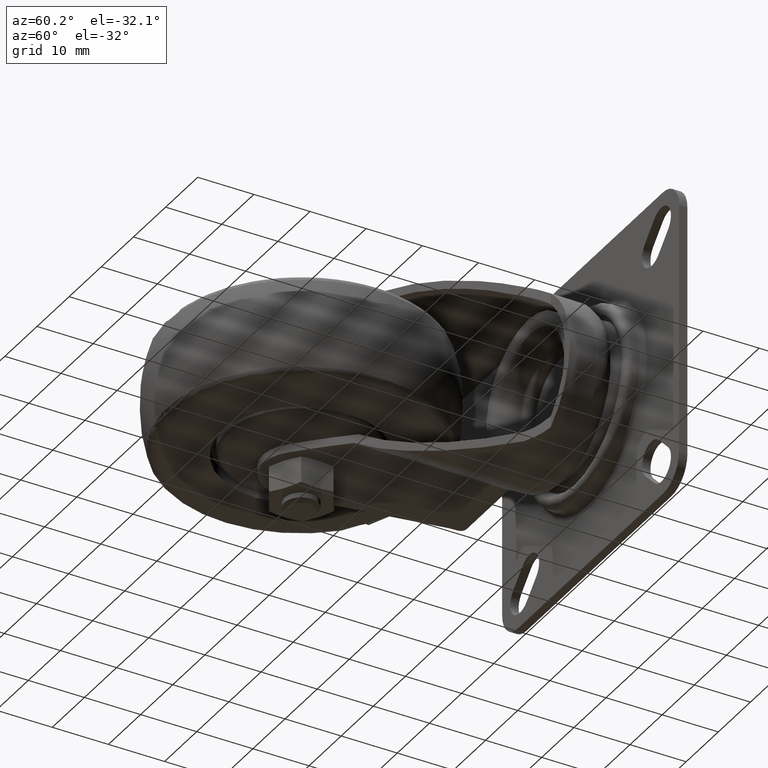
[diagram: clean part render]
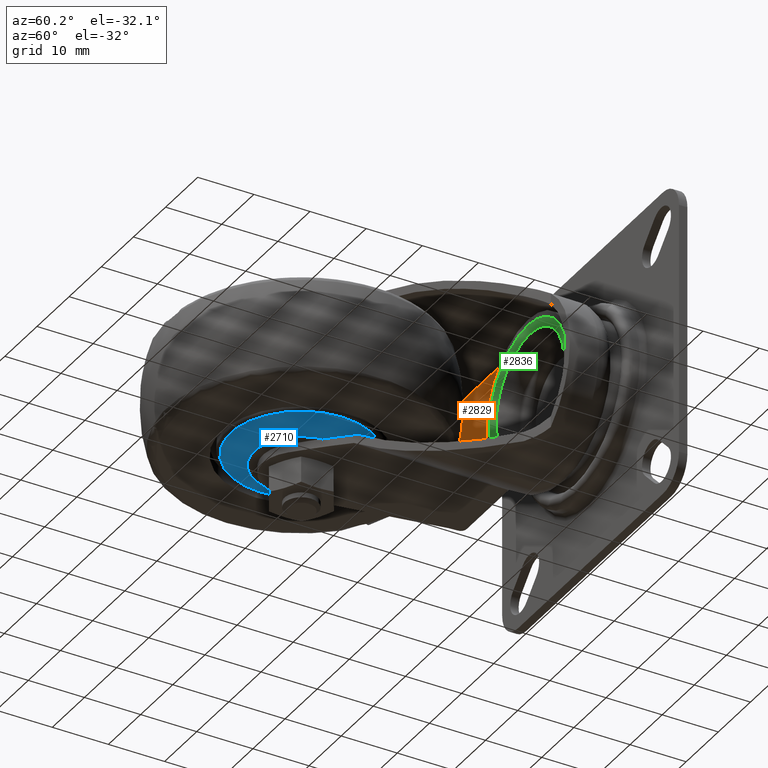
[diagram: same view with three faces highlighted in distinct colors, each labeled with its STEP entity id]
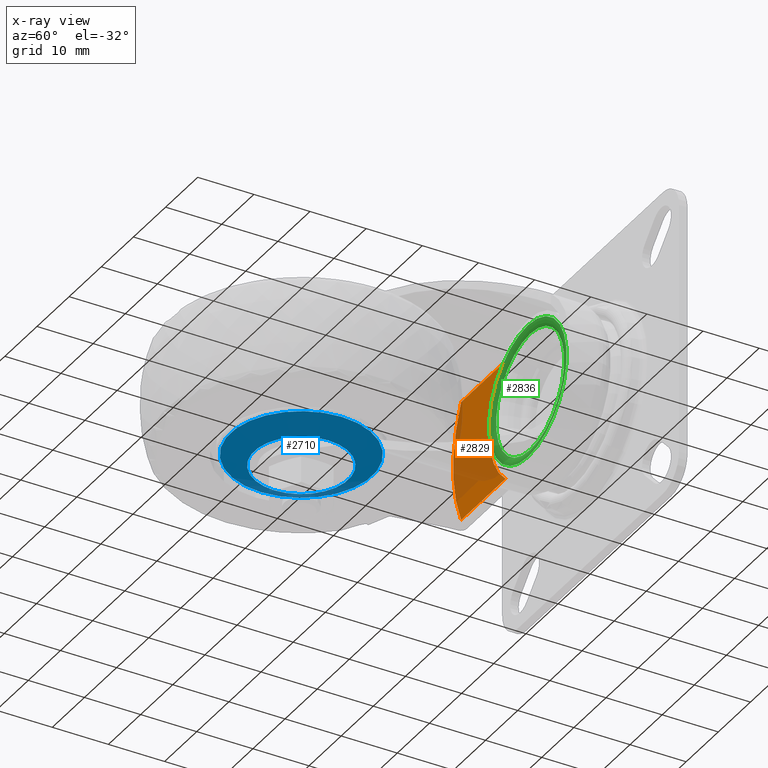
[diagram: x-ray of the same camera — body ghosted, the three highlighted faces saturated]
A machine part, auxiliary view with three faces highlighted in distinct colors.
The next image is the same camera in x-ray (body ghosted, the three faces saturated) — at least one of them is partly hidden behind the body in this view.
Their STEP definitions:

[orange] entity #2829 — the highlighted planar face has unit normal (0, -1, 0).
#178=LINE('',#4894,#307);
#192=LINE('',#5036,#321);
#193=LINE('',#5040,#322);
#258=LINE('',#5352,#387);
#307=VECTOR('',#3870,1000.);
#321=VECTOR('',#3914,1000.);
#322=VECTOR('',#3917,1000.);
#387=VECTOR('',#4236,1000.);
#532=PLANE('',#3381);
#692=FACE_OUTER_BOUND('',#904,.T.);
#904=EDGE_LOOP('',(#2523,#2524,#2525,#2526,#2527,#2528));
#1100=CIRCLE('',#3382,24.7183130081301);
#1101=CIRCLE('',#3383,14.);
#1287=VERTEX_POINT('',#4882);
#1292=VERTEX_POINT('',#4892);
#1319=VERTEX_POINT('',#5023);
#1320=VERTEX_POINT('',#5038);
#1321=VERTEX_POINT('',#5039);
#1405=VERTEX_POINT('',#5350);
#1611=EDGE_CURVE('',#1287,#1292,#178,.T.);
#1644=EDGE_CURVE('',#1319,#1292,#192,.T.);
#1645=EDGE_CURVE('',#1320,#1321,#193,.T.);
#1784=EDGE_CURVE('',#1321,#1405,#258,.T.);
#1786=EDGE_CURVE('',#1287,#1405,#1100,.T.);
#1787=EDGE_CURVE('',#1319,#1320,#1101,.F.);
#2523=ORIENTED_EDGE('',*,*,#1645,.T.);
#2524=ORIENTED_EDGE('',*,*,#1784,.T.);
#2525=ORIENTED_EDGE('',*,*,#1786,.F.);
#2526=ORIENTED_EDGE('',*,*,#1611,.T.);
#2527=ORIENTED_EDGE('',*,*,#1644,.F.);
#2528=ORIENTED_EDGE('',*,*,#1787,.T.);
#2829=ADVANCED_FACE('',(#692),#532,.T.);
#3381=AXIS2_PLACEMENT_3D('',#5355,#4241,#4242);
#3382=AXIS2_PLACEMENT_3D('',#5356,#4243,#4244);
#3383=AXIS2_PLACEMENT_3D('',#5357,#4245,#4246);
#3870=DIRECTION('',(0.,0.,-1.));
#3914=DIRECTION('',(-1.,0.,0.));
#3917=DIRECTION('',(-1.,0.,0.));
#4236=DIRECTION('',(0.,0.,-1.));
#4241=DIRECTION('center_axis',(0.,-1.,0.));
#4242=DIRECTION('ref_axis',(0.,0.,-1.));
#4243=DIRECTION('center_axis',(0.,1.,0.));
#4244=DIRECTION('ref_axis',(1.,0.,0.));
#4245=DIRECTION('center_axis',(0.,-1.,0.));
#4246=DIRECTION('ref_axis',(0.,0.,-1.));
#4882=CARTESIAN_POINT('',(-1.89743801652892,29.5,-10.5246462682058));
#4892=CARTESIAN_POINT('',(-1.89743801652893,29.5,-10.75));
#4894=CARTESIAN_POINT('',(-1.89743801652893,29.5,-10.75));
#5023=CARTESIAN_POINT('',(12.031304442674,29.5,-10.75));
#5036=CARTESIAN_POINT('',(24.5,29.5,-10.75));
#5038=CARTESIAN_POINT('',(12.031304442674,29.5,10.75));
#5039=CARTESIAN_POINT('',(-1.89743801652892,29.5,10.75));
#5040=CARTESIAN_POINT('',(24.5,29.5,10.75));
#5350=CARTESIAN_POINT('',(-1.89743801652892,29.5,10.5246462682058));
#5352=CARTESIAN_POINT('',(-1.89743801652893,29.5,-10.75));
#5355=CARTESIAN_POINT('Origin',(24.5,29.5,-10.75));
#5356=CARTESIAN_POINT('Origin',(20.4683130081301,29.5,0.));
#5357=CARTESIAN_POINT('Origin',(21.,29.5,0.));

[blue] entity #2710 — the highlighted conical surface has half-angle 65 deg.
#154=LINE('',#4586,#283);
#283=VECTOR('',#3610,12.6226182617407);
#573=FACE_OUTER_BOUND('',#759,.T.);
#759=EDGE_LOOP('',(#1972,#1973,#1974,#1975));
#963=CIRCLE('',#3116,12.6226182617407);
#964=CIRCLE('',#3118,8.38046179954888);
#1224=VERTEX_POINT('',#4581);
#1225=VERTEX_POINT('',#4585);
#1500=EDGE_CURVE('',#1224,#1224,#963,.T.);
#1501=EDGE_CURVE('',#1224,#1225,#154,.T.);
#1502=EDGE_CURVE('',#1225,#1225,#964,.T.);
#1972=ORIENTED_EDGE('',*,*,#1500,.F.);
#1973=ORIENTED_EDGE('',*,*,#1501,.T.);
#1974=ORIENTED_EDGE('',*,*,#1502,.T.);
#1975=ORIENTED_EDGE('',*,*,#1501,.F.);
#2646=CONICAL_SURFACE('',#3117,12.6226182617407,1.13446401379631);
#2710=ADVANCED_FACE('',(#573),#2646,.T.);
#3116=AXIS2_PLACEMENT_3D('',#4583,#3606,#3607);
#3117=AXIS2_PLACEMENT_3D('',#4584,#3608,#3609);
#3118=AXIS2_PLACEMENT_3D('',#4587,#3611,#3612);
#3606=DIRECTION('center_axis',(1.,0.,0.));
#3607=DIRECTION('ref_axis',(0.,0.,-1.));
#3608=DIRECTION('center_axis',(1.,0.,0.));
#3609=DIRECTION('ref_axis',(0.,0.,-1.));
#3610=DIRECTION('',(-0.422618261740703,1.10990693043675E-16,-0.906307787036648));
#3611=DIRECTION('center_axis',(1.,0.,0.));
#3612=DIRECTION('ref_axis',(0.,0.,-1.));
#4581=CARTESIAN_POINT('',(2.02499615189343,-1.54582490510997E-15,12.6226182617407));
#4583=CARTESIAN_POINT('Origin',(2.02499615189343,0.,0.));
#4584=CARTESIAN_POINT('Origin',(2.02499615189343,0.,0.));
#4585=CARTESIAN_POINT('',(0.0468461064816514,-1.02631057181942E-15,8.38046179954889));
#4586=CARTESIAN_POINT('',(2.02499615189343,-1.54582490510997E-15,12.6226182617407));
#4587=CARTESIAN_POINT('Origin',(0.046846106481676,0.,0.));

[green] entity #2836 — the highlighted toroidal blend (fillet) surface has major radius 12.03 mm and minor (blend) radius 2.8 mm.
#135=TOROIDAL_SURFACE('',#3403,12.03,2.80000000000002);
#699=FACE_OUTER_BOUND('',#911,.T.);
#911=EDGE_LOOP('',(#2566,#2567,#2568,#2569));
#1114=CIRCLE('',#3402,10.5820762082084);
#1115=CIRCLE('',#3404,2.80000000000002);
#1116=CIRCLE('',#3405,12.03);
#1414=VERTEX_POINT('',#5385);
#1415=VERTEX_POINT('',#5389);
#1802=EDGE_CURVE('',#1414,#1414,#1114,.T.);
#1803=EDGE_CURVE('',#1414,#1415,#1115,.T.);
#1804=EDGE_CURVE('',#1415,#1415,#1116,.T.);
#2566=ORIENTED_EDGE('',*,*,#1802,.F.);
#2567=ORIENTED_EDGE('',*,*,#1803,.T.);
#2568=ORIENTED_EDGE('',*,*,#1804,.T.);
#2569=ORIENTED_EDGE('',*,*,#1803,.F.);
#2836=ADVANCED_FACE('',(#699),#135,.T.);
#3402=AXIS2_PLACEMENT_3D('',#5387,#4285,#4286);
#3403=AXIS2_PLACEMENT_3D('',#5388,#4287,#4288);
#3404=AXIS2_PLACEMENT_3D('',#5390,#4289,#4290);
#3405=AXIS2_PLACEMENT_3D('',#5391,#4291,#4292);
#4285=DIRECTION('center_axis',(0.,-1.,0.));
#4286=DIRECTION('ref_axis',(0.,0.,-1.));
#4287=DIRECTION('center_axis',(0.,-1.,0.));
#4288=DIRECTION('ref_axis',(0.,0.,-1.));
#4289=DIRECTION('center_axis',(-1.,0.,0.));
#4290=DIRECTION('ref_axis',(0.,0.,1.));
#4291=DIRECTION('center_axis',(0.,-1.,0.));
#4292=DIRECTION('ref_axis',(0.,0.,-1.));
#5385=CARTESIAN_POINT('',(21.,28.7434364825518,10.5820762082084));
#5387=CARTESIAN_POINT('Origin',(21.,28.7434364825518,0.));
#5388=CARTESIAN_POINT('Origin',(21.,31.14,0.));
#5389=CARTESIAN_POINT('',(21.,28.34,12.03));
#5390=CARTESIAN_POINT('Origin',(21.,31.14,12.03));
#5391=CARTESIAN_POINT('Origin',(21.,28.34,0.));